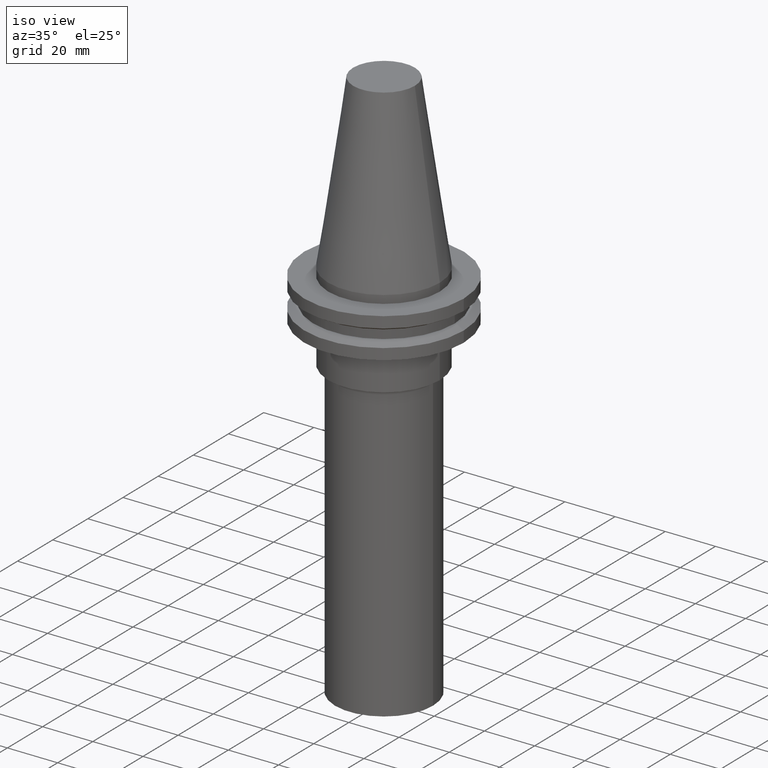
[diagram: clean part render]
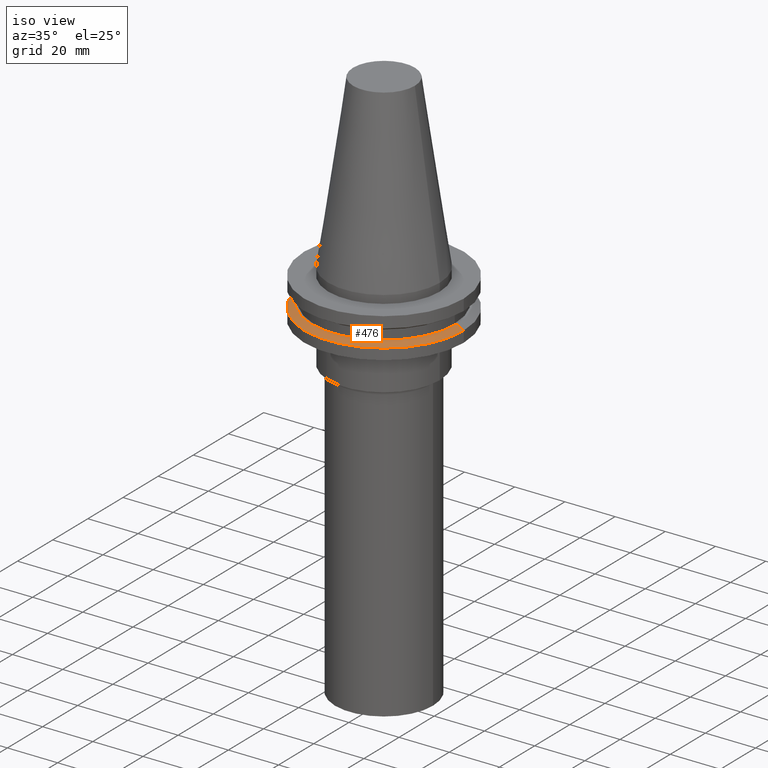
[diagram: same view with one face highlighted and labeled with its STEP entity id]
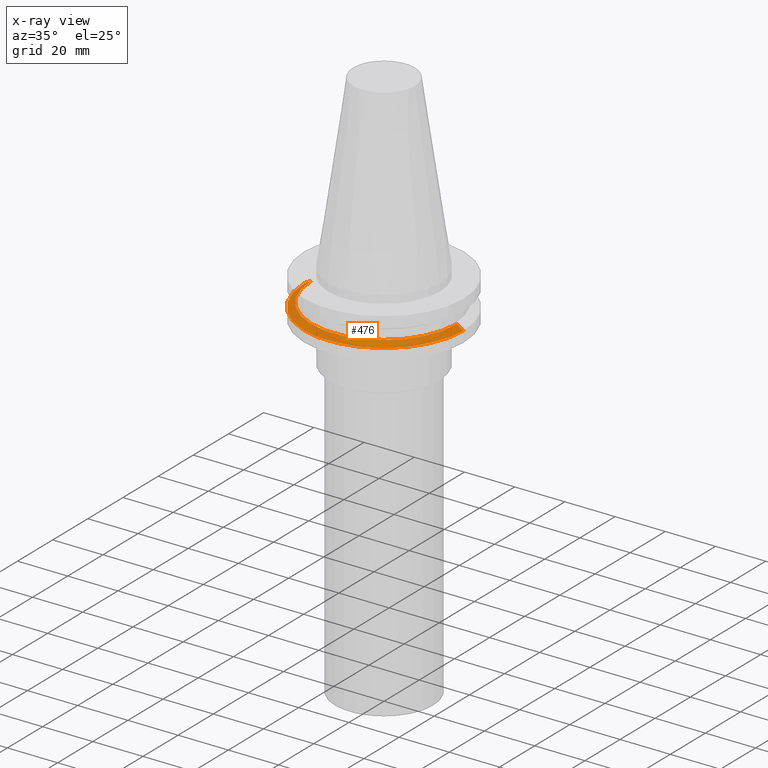
[diagram: x-ray of the same camera — body ghosted, the highlighted face saturated]
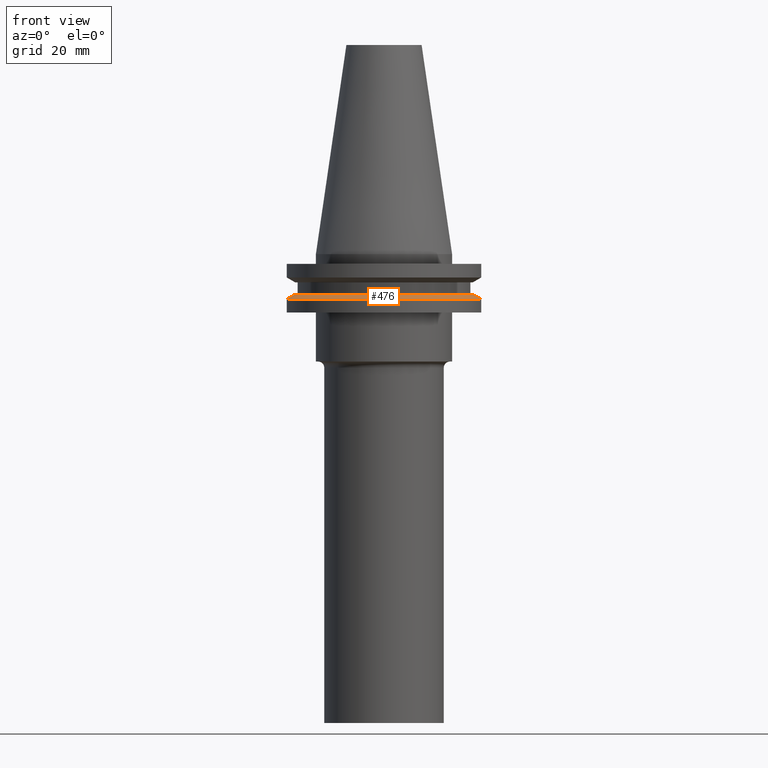
[diagram: same view with one face highlighted and labeled with its STEP entity id]
A machine part, iso view. The second image highlights one B-rep face of the part: STEP entity #476.
The next image is the same camera in x-ray: the body ghosted, the highlighted face saturated — about 1% of this face is hidden behind the body in this view.
A second angle (front view) of the same face is appended — the face is thin or edge-on in the first view.
In plain terms, the highlighted conical surface has half-angle 60 deg.
Its self-contained STEP definition (entity closure, byte-faithful):
#26 = ORIENTED_EDGE ( 'NONE', *, *, #661, .F. ) ;
#49 = CARTESIAN_POINT ( 'NONE',  ( -28.97919780457008088, 0.000000000000000000, -13.05499999999999794 ) ) ;
#94 = VERTEX_POINT ( 'NONE', #681 ) ;
#128 = EDGE_CURVE ( 'NONE', #171, #94, #540, .T. ) ;
#137 = VERTEX_POINT ( 'NONE', #341 ) ;
#143 = FACE_OUTER_BOUND ( 'NONE', #747, .T. ) ;
#171 = VERTEX_POINT ( 'NONE', #49 ) ;
#192 = DIRECTION ( 'NONE',  ( 0.8660254037844387076, 1.060575238724906915E-16, -0.4999999999999998890 ) ) ;
#235 = CARTESIAN_POINT ( 'NONE',  ( -31.75000000000000000, 0.000000000000000000, -14.65472339340266572 ) ) ;
#241 = LINE ( 'NONE', #235, #551 ) ;
#270 = DIRECTION ( 'NONE',  ( 1.000000000000000000, 0.000000000000000000, 0.000000000000000000 ) ) ;
#288 = ORIENTED_EDGE ( 'NONE', *, *, #662, .T. ) ;
#292 = ORIENTED_EDGE ( 'NONE', *, *, #595, .T. ) ;
#305 = CARTESIAN_POINT ( 'NONE',  ( 31.75000000000000000, 3.888253587292846476E-15, -14.65472339340266572 ) ) ;
#341 = CARTESIAN_POINT ( 'NONE',  ( -31.75000000000000000, 3.888253587292846476E-15, -14.65472339340266572 ) ) ;
#367 = CIRCLE ( 'NONE', #611, 31.75000000000000000 ) ;
#397 = DIRECTION ( 'NONE',  ( -0.000000000000000000, -0.000000000000000000, 1.000000000000000000 ) ) ;
#406 = CARTESIAN_POINT ( 'NONE',  ( 0.000000000000000000, 0.000000000000000000, -13.05499999999999794 ) ) ;
#417 = CARTESIAN_POINT ( 'NONE',  ( 0.000000000000000000, 0.000000000000000000, -14.65472339340266572 ) ) ;
#424 = VECTOR ( 'NONE', #192, 1000.000000000000000 ) ;
#460 = DIRECTION ( 'NONE',  ( 0.000000000000000000, 0.000000000000000000, -1.000000000000000000 ) ) ;
#476 = ADVANCED_FACE ( 'NONE', ( #143 ), #565, .T. ) ;
#477 = DIRECTION ( 'NONE',  ( -0.8660254037844387076, 0.000000000000000000, -0.4999999999999998890 ) ) ;
#494 = LINE ( 'NONE', #305, #424 ) ;
#511 = AXIS2_PLACEMENT_3D ( 'NONE', #406, #397, #270 ) ;
#512 = DIRECTION ( 'NONE',  ( -1.000000000000000000, 0.000000000000000000, 0.000000000000000000 ) ) ;
#519 = VERTEX_POINT ( 'NONE', #766 ) ;
#540 = CIRCLE ( 'NONE', #511, 28.97919780457008088 ) ;
#551 = VECTOR ( 'NONE', #477, 1000.000000000000000 ) ;
#565 = CONICAL_SURFACE ( 'NONE', #698, 31.75000000000000000, 1.047197551196597853 ) ;
#588 = DIRECTION ( 'NONE',  ( 1.000000000000000000, 0.000000000000000000, 0.000000000000000000 ) ) ;
#595 = EDGE_CURVE ( 'NONE', #171, #137, #241, .T. ) ;
#610 = CARTESIAN_POINT ( 'NONE',  ( 0.000000000000000000, 0.000000000000000000, -14.65472339340266572 ) ) ;
#611 = AXIS2_PLACEMENT_3D ( 'NONE', #610, #667, #588 ) ;
#619 = ORIENTED_EDGE ( 'NONE', *, *, #128, .F. ) ;
#661 = EDGE_CURVE ( 'NONE', #94, #519, #494, .T. ) ;
#662 = EDGE_CURVE ( 'NONE', #137, #519, #367, .T. ) ;
#667 = DIRECTION ( 'NONE',  ( -0.000000000000000000, -0.000000000000000000, 1.000000000000000000 ) ) ;
#681 = CARTESIAN_POINT ( 'NONE',  ( 28.97919780457008088, 3.718590885307660666E-15, -13.05499999999999794 ) ) ;
#698 = AXIS2_PLACEMENT_3D ( 'NONE', #417, #460, #512 ) ;
#747 = EDGE_LOOP ( 'NONE', ( #26, #619, #292, #288 ) ) ;
#766 = CARTESIAN_POINT ( 'NONE',  ( 31.75000000000000000, 0.000000000000000000, -14.65472339340266572 ) ) ;